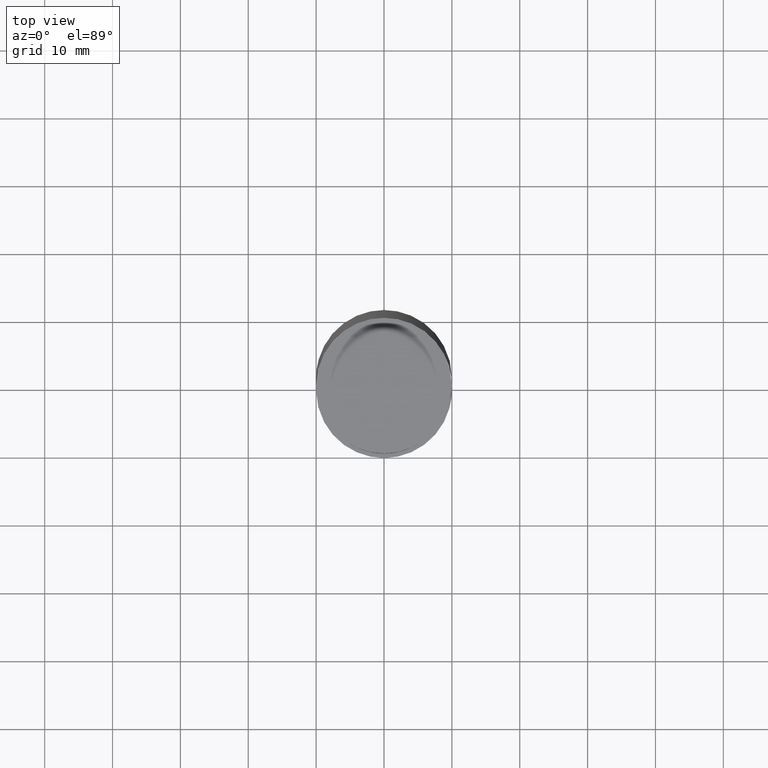
[diagram: clean part render]
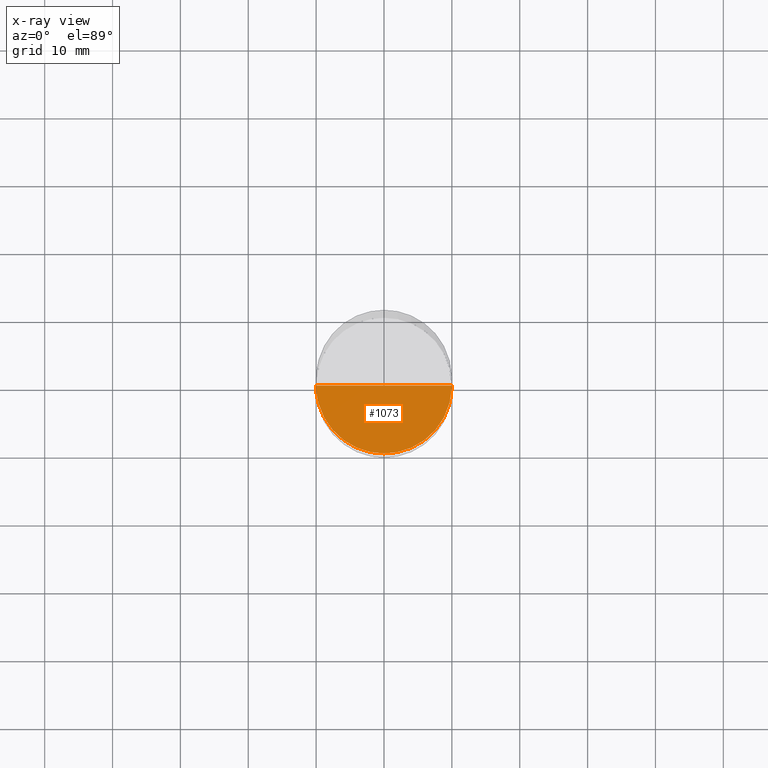
[diagram: x-ray — body ghosted, one internal face saturated and labeled with its STEP entity id]
A machine part, top view, then the same camera in x-ray: the body is ghosted and one INTERNAL B-rep face — a face not visible from any outside direction — is saturated and labeled: STEP entity #1073.
In plain terms, the highlighted face is a freeform B-spline surface patch.
Its self-contained STEP definition (entity closure, byte-faithful):
#928=CARTESIAN_POINT('',(10.0,0.0,-3.0));
#932=CARTESIAN_POINT('',(-10.0,0.0,-3.0));
#933=CARTESIAN_POINT('',(0.0,0.0,-3.0));
#937=CARTESIAN_POINT('',(-10.0,-10.0,-3.0));
#938=CARTESIAN_POINT('',(0.0,-10.0,-3.0));
#939=CARTESIAN_POINT('',(10.0,-10.0,-3.0));
#1058=(
BOUNDED_SURFACE()
B_SPLINE_SURFACE(1,2,(
(#932,#937,#938,#939,#928),
(#933,#933,#933,#933,#933)
), .UNSPECIFIED.,.F.,.F.,.F.)
B_SPLINE_SURFACE_WITH_KNOTS((2,2),(3,2,3),(
0.0,1.0),(
0.0,0.5,1.0), .UNSPECIFIED.)
GEOMETRIC_REPRESENTATION_ITEM()
RATIONAL_B_SPLINE_SURFACE(((1.0,0.707106781187,1.0,0.707106781187,1.0),
(1.0,0.707106781187,1.0,0.707106781187,1.0)
))
REPRESENTATION_ITEM('')
SURFACE()
);
#1059=(
BOUNDED_CURVE()
B_SPLINE_CURVE(2,(#928,#939,#938,#937,#932),.UNSPECIFIED.,.F.,.F.)
B_SPLINE_CURVE_WITH_KNOTS((3,2,3),
(0.0,0.5,1.0),.UNSPECIFIED.)
CURVE()
GEOMETRIC_REPRESENTATION_ITEM()
RATIONAL_B_SPLINE_CURVE((1.0,0.707106781187,1.0,0.707106781187,1.0))
REPRESENTATION_ITEM('')
);
#1060=(
BOUNDED_CURVE()
B_SPLINE_CURVE(1,(#932,#933),.UNSPECIFIED.,.F.,.F.)
B_SPLINE_CURVE_WITH_KNOTS((2,2),
(0.0,1.0),.UNSPECIFIED.)
CURVE()
GEOMETRIC_REPRESENTATION_ITEM()
RATIONAL_B_SPLINE_CURVE((1.0,1.0))
REPRESENTATION_ITEM('')
);
#1061=(
BOUNDED_CURVE()
B_SPLINE_CURVE(1,(#933,#928),.UNSPECIFIED.,.F.,.F.)
B_SPLINE_CURVE_WITH_KNOTS((2,2),
(0.0,1.0),.UNSPECIFIED.)
CURVE()
GEOMETRIC_REPRESENTATION_ITEM()
RATIONAL_B_SPLINE_CURVE((1.0,1.0))
REPRESENTATION_ITEM('')
);
#1062=VERTEX_POINT('',#928);
#1063=VERTEX_POINT('',#932);
#1064=VERTEX_POINT('',#933);
#1065=EDGE_CURVE('',#1062,#1063,#1059,.T.);
#1066=EDGE_CURVE('',#1063,#1064,#1060,.T.);
#1067=EDGE_CURVE('',#1064,#1062,#1061,.T.);
#1068=ORIENTED_EDGE('',*,*,#1065,.T.);
#1069=ORIENTED_EDGE('',*,*,#1066,.T.);
#1070=ORIENTED_EDGE('',*,*,#1067,.T.);
#1071=EDGE_LOOP('',(#1068,#1069,#1070));
#1072=FACE_OUTER_BOUND('',#1071,.T.);
#1073=ADVANCED_FACE('',(#1072),#1058,.T.);